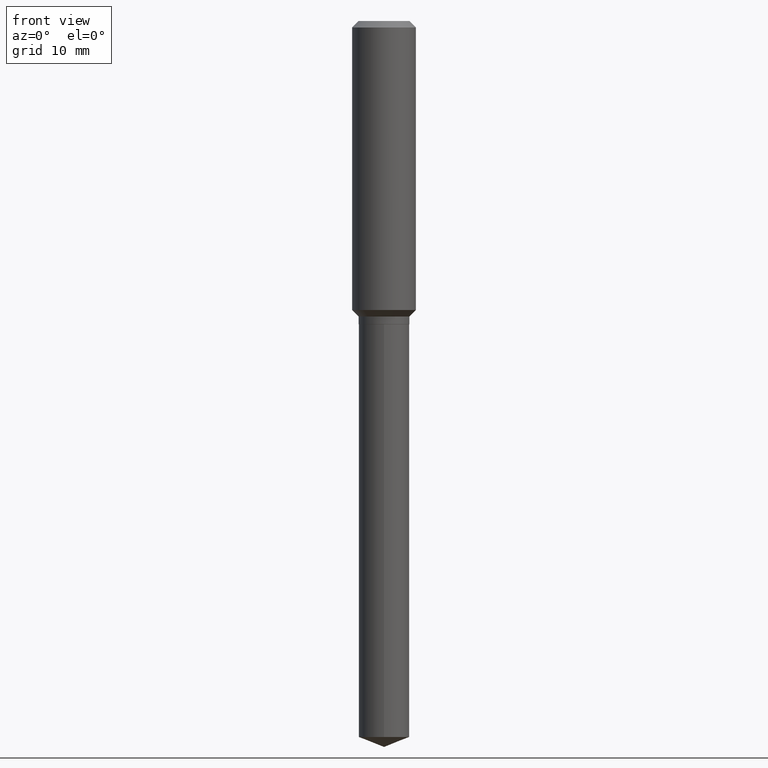
[diagram: clean part render]
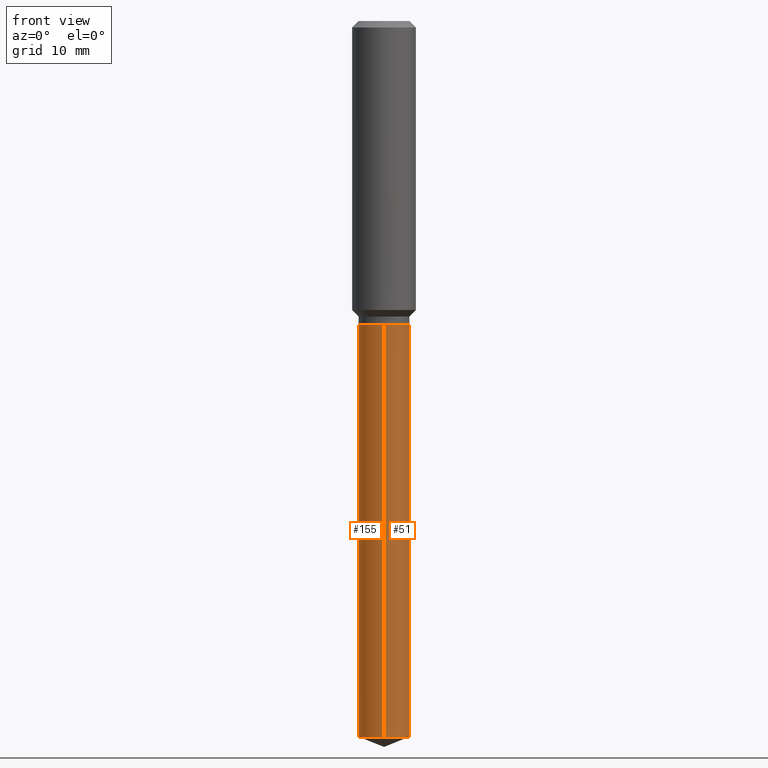
[diagram: same view with one multi-face feature highlighted, each face labeled with its STEP entity id]
A machine part, front view. The highlighted faces form ONE feature: a constant-radius fillet chain: 2 tangent blend faces with common blend radius 3.175 mm. The faces share edges in the B-rep.
Their STEP definitions:
[1] entity #155 (Cylinder):
#9 = CARTESIAN_POINT ( 'NONE',  ( -8.728703347106965641E-16, -0.1250000000000122957, -3.533761190548131204 ) ) ;
#24 = VERTEX_POINT ( 'NONE', #260 ) ;
#32 = VERTEX_POINT ( 'NONE', #238 ) ;
#54 = DIRECTION ( 'NONE',  ( -2.445483652818804664E-29, 3.491460077618715012E-15, 1.000000000000000000 ) ) ;
#62 = CARTESIAN_POINT ( 'NONE',  ( -8.728703347107465582E-16, -0.1250000000000052180, -1.496399999999999730 ) ) ;
#73 = DIRECTION ( 'NONE',  ( -2.445483652818804384E-29, 3.491460077618715012E-15, 1.000000000000000000 ) ) ;
#84 = EDGE_CURVE ( 'NONE', #24, #441, #395, .T. ) ;
#90 = AXIS2_PLACEMENT_3D ( 'NONE', #320, #54, #291 ) ;
#103 = DIRECTION ( 'NONE',  ( -6.982962677686265922E-15, -1.000000000000000000, 4.370956789862821150E-15 ) ) ;
#116 = EDGE_LOOP ( 'NONE', ( #284, #205, #136, #367 ) ) ;
#134 = EDGE_CURVE ( 'NONE', #188, #32, #137, .T. ) ;
#136 = ORIENTED_EDGE ( 'NONE', *, *, #201, .T. ) ;
#137 = CIRCLE ( 'NONE', #314, 0.1250000000000000000 ) ;
#155 = ADVANCED_FACE ( 'NONE', ( #325 ), #283, .T. ) ;
#157 = VECTOR ( 'NONE', #250, 39.37007874015748143 ) ;
#162 = DIRECTION ( 'NONE',  ( -6.982962677686265922E-15, -1.000000000000000000, 4.370956789862821150E-15 ) ) ;
#188 = VERTEX_POINT ( 'NONE', #359 ) ;
#201 = EDGE_CURVE ( 'NONE', #441, #32, #362, .T. ) ;
#205 = ORIENTED_EDGE ( 'NONE', *, *, #84, .T. ) ;
#208 = DIRECTION ( 'NONE',  ( -2.445483652818804664E-29, 3.491460077618715012E-15, 1.000000000000000000 ) ) ;
#238 = CARTESIAN_POINT ( 'NONE',  ( -8.728703347107465582E-16, -0.1250000000000052180, -1.496399999999999730 ) ) ;
#250 = DIRECTION ( 'NONE',  ( -2.445483652818804384E-29, 3.491460077618715012E-15, 1.000000000000000000 ) ) ;
#259 = LINE ( 'NONE', #299, #377 ) ;
#260 = CARTESIAN_POINT ( 'NONE',  ( 8.881784197002114154E-16, 0.1249999999999876349, -3.533761190548132092 ) ) ;
#283 = CYLINDRICAL_SURFACE ( 'NONE', #90, 0.1250000000000000000 ) ;
#284 = ORIENTED_EDGE ( 'NONE', *, *, #418, .F. ) ;
#289 = CARTESIAN_POINT ( 'NONE',  ( 3.659399521575438742E-29, -5.224652675444883351E-15, -1.496400000000000174 ) ) ;
#291 = DIRECTION ( 'NONE',  ( -6.982962677686265922E-15, -1.000000000000000000, 4.370956789862821150E-15 ) ) ;
#299 = CARTESIAN_POINT ( 'NONE',  ( 8.881784197001617172E-16, 0.1249999999999947681, -1.496400000000000841 ) ) ;
#314 = AXIS2_PLACEMENT_3D ( 'NONE', #289, #208, #103 ) ;
#320 = CARTESIAN_POINT ( 'NONE',  ( 3.659399521575438742E-29, -5.224652675444883351E-15, -1.496400000000000174 ) ) ;
#325 = FACE_OUTER_BOUND ( 'NONE', #116, .T. ) ;
#351 = CARTESIAN_POINT ( 'NONE',  ( 8.641733007948351542E-29, -1.233801793593342010E-14, -3.533761190548131648 ) ) ;
#359 = CARTESIAN_POINT ( 'NONE',  ( 8.881784197002118098E-16, 0.1249999999999947681, -1.496400000000000841 ) ) ;
#362 = LINE ( 'NONE', #62, #157 ) ;
#367 = ORIENTED_EDGE ( 'NONE', *, *, #134, .F. ) ;
#377 = VECTOR ( 'NONE', #73, 39.37007874015748143 ) ;
#392 = DIRECTION ( 'NONE',  ( -2.445483652818804664E-29, 3.491460077618715012E-15, 1.000000000000000000 ) ) ;
#395 = CIRCLE ( 'NONE', #456, 0.1250000000000000000 ) ;
#418 = EDGE_CURVE ( 'NONE', #24, #188, #259, .T. ) ;
#441 = VERTEX_POINT ( 'NONE', #9 ) ;
#456 = AXIS2_PLACEMENT_3D ( 'NONE', #351, #392, #162 ) ;
[2] entity #51 (Cylinder):
#9 = CARTESIAN_POINT ( 'NONE',  ( -8.728703347106965641E-16, -0.1250000000000122957, -3.533761190548131204 ) ) ;
#24 = VERTEX_POINT ( 'NONE', #260 ) ;
#32 = VERTEX_POINT ( 'NONE', #238 ) ;
#39 = CIRCLE ( 'NONE', #340, 0.1250000000000000000 ) ;
#51 = ADVANCED_FACE ( 'NONE', ( #83 ), #124, .T. ) ;
#62 = CARTESIAN_POINT ( 'NONE',  ( -8.728703347107465582E-16, -0.1250000000000052180, -1.496399999999999730 ) ) ;
#72 = ORIENTED_EDGE ( 'NONE', *, *, #306, .F. ) ;
#73 = DIRECTION ( 'NONE',  ( -2.445483652818804384E-29, 3.491460077618715012E-15, 1.000000000000000000 ) ) ;
#76 = CARTESIAN_POINT ( 'NONE',  ( 8.641733007948351542E-29, -1.233801793593342010E-14, -3.533761190548131648 ) ) ;
#83 = FACE_OUTER_BOUND ( 'NONE', #182, .T. ) ;
#124 = CYLINDRICAL_SURFACE ( 'NONE', #348, 0.1250000000000000000 ) ;
#153 = DIRECTION ( 'NONE',  ( -6.982962677686265922E-15, -1.000000000000000000, 4.370956789862821150E-15 ) ) ;
#156 = DIRECTION ( 'NONE',  ( -6.982962677686265922E-15, -1.000000000000000000, 4.370956789862821150E-15 ) ) ;
#157 = VECTOR ( 'NONE', #250, 39.37007874015748143 ) ;
#181 = DIRECTION ( 'NONE',  ( -2.445483652818804664E-29, 3.491460077618715012E-15, 1.000000000000000000 ) ) ;
#182 = EDGE_LOOP ( 'NONE', ( #332, #275, #72, #273 ) ) ;
#185 = CARTESIAN_POINT ( 'NONE',  ( 3.659399521575438742E-29, -5.224652675444883351E-15, -1.496400000000000174 ) ) ;
#188 = VERTEX_POINT ( 'NONE', #359 ) ;
#198 = DIRECTION ( 'NONE',  ( -6.982962677686265922E-15, -1.000000000000000000, 4.370956789862821150E-15 ) ) ;
#201 = EDGE_CURVE ( 'NONE', #441, #32, #362, .T. ) ;
#238 = CARTESIAN_POINT ( 'NONE',  ( -8.728703347107465582E-16, -0.1250000000000052180, -1.496399999999999730 ) ) ;
#250 = DIRECTION ( 'NONE',  ( -2.445483652818804384E-29, 3.491460077618715012E-15, 1.000000000000000000 ) ) ;
#259 = LINE ( 'NONE', #299, #377 ) ;
#260 = CARTESIAN_POINT ( 'NONE',  ( 8.881784197002114154E-16, 0.1249999999999876349, -3.533761190548132092 ) ) ;
#273 = ORIENTED_EDGE ( 'NONE', *, *, #201, .F. ) ;
#275 = ORIENTED_EDGE ( 'NONE', *, *, #418, .T. ) ;
#299 = CARTESIAN_POINT ( 'NONE',  ( 8.881784197001617172E-16, 0.1249999999999947681, -1.496400000000000841 ) ) ;
#306 = EDGE_CURVE ( 'NONE', #32, #188, #39, .T. ) ;
#307 = AXIS2_PLACEMENT_3D ( 'NONE', #76, #484, #156 ) ;
#319 = DIRECTION ( 'NONE',  ( -2.445483652818804664E-29, 3.491460077618715012E-15, 1.000000000000000000 ) ) ;
#332 = ORIENTED_EDGE ( 'NONE', *, *, #370, .T. ) ;
#340 = AXIS2_PLACEMENT_3D ( 'NONE', #185, #181, #153 ) ;
#348 = AXIS2_PLACEMENT_3D ( 'NONE', #355, #319, #198 ) ;
#349 = CIRCLE ( 'NONE', #307, 0.1250000000000000000 ) ;
#355 = CARTESIAN_POINT ( 'NONE',  ( 3.659399521575438742E-29, -5.224652675444883351E-15, -1.496400000000000174 ) ) ;
#359 = CARTESIAN_POINT ( 'NONE',  ( 8.881784197002118098E-16, 0.1249999999999947681, -1.496400000000000841 ) ) ;
#362 = LINE ( 'NONE', #62, #157 ) ;
#370 = EDGE_CURVE ( 'NONE', #441, #24, #349, .T. ) ;
#377 = VECTOR ( 'NONE', #73, 39.37007874015748143 ) ;
#418 = EDGE_CURVE ( 'NONE', #24, #188, #259, .T. ) ;
#441 = VERTEX_POINT ( 'NONE', #9 ) ;
#484 = DIRECTION ( 'NONE',  ( -2.445483652818804664E-29, 3.491460077618715012E-15, 1.000000000000000000 ) ) ;